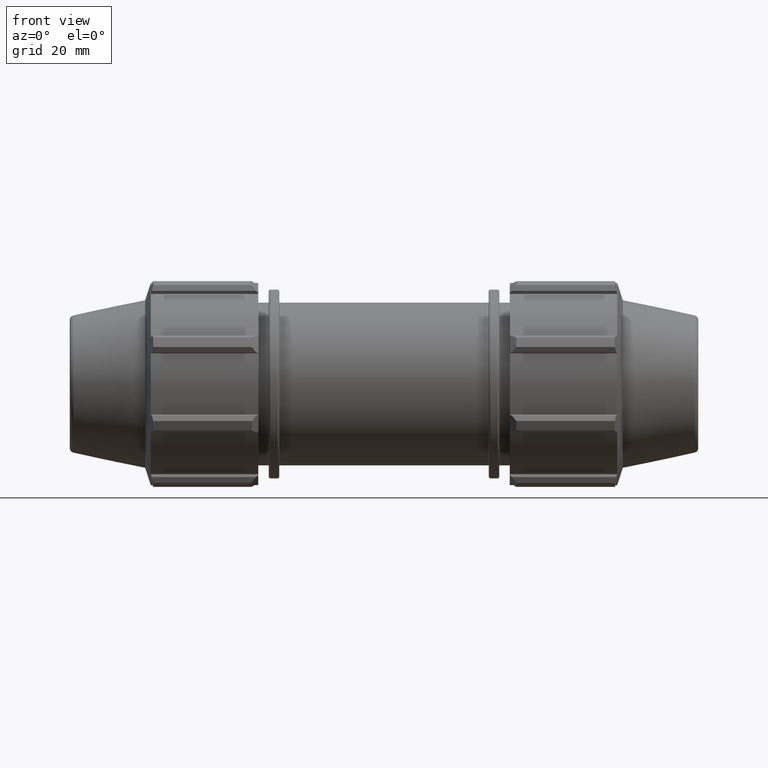
[diagram: clean part render]
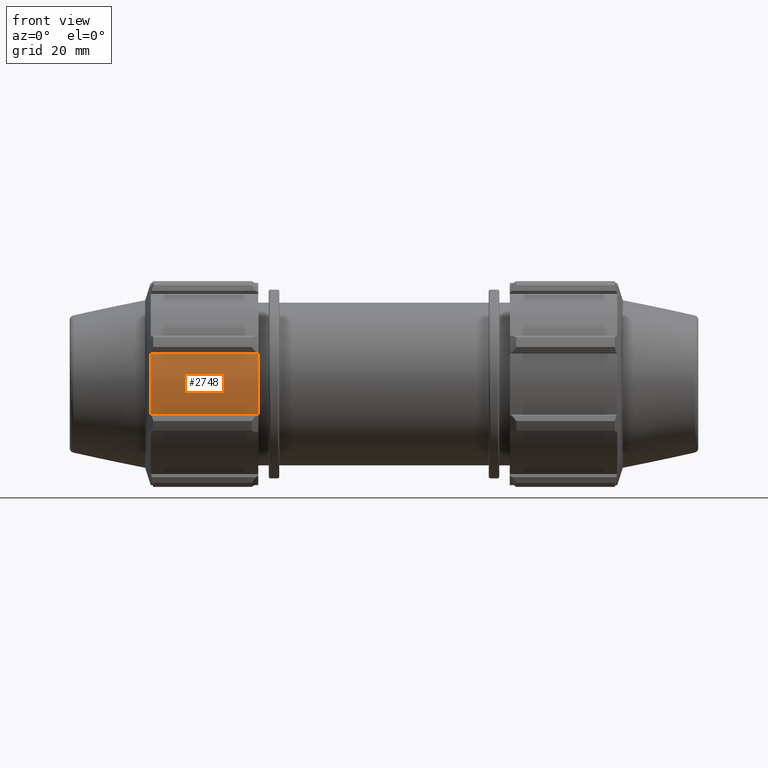
[diagram: same view with one face highlighted and labeled with its STEP entity id]
A machine part, front view. The second image highlights one B-rep face of the part: STEP entity #2748.
In plain terms, the highlighted cylindrical surface (partial cylindrical patch) has radius 22.32 mm, axis along (1, 0, -0).
Its self-contained STEP definition (entity closure, byte-faithful):
#110=LINE('',#4074,#302);
#174=LINE('',#4380,#366);
#302=VECTOR('',#3221,23.6052845743094);
#366=VECTOR('',#3451,23.6052845743094);
#682=FACE_OUTER_BOUND('',#854,.T.);
#854=EDGE_LOOP('',(#2056,#2057,#2058,#2059));
#981=CIRCLE('',#2861,22.32);
#1014=CIRCLE('',#2922,22.32);
#1108=VERTEX_POINT('',#3988);
#1109=VERTEX_POINT('',#3990);
#1143=VERTEX_POINT('',#4072);
#1203=VERTEX_POINT('',#4288);
#1374=EDGE_CURVE('',#1108,#1109,#981,.T.);
#1413=EDGE_CURVE('',#1108,#1143,#110,.T.);
#1497=EDGE_CURVE('',#1203,#1143,#1014,.T.);
#1537=EDGE_CURVE('',#1109,#1203,#174,.T.);
#2056=ORIENTED_EDGE('',*,*,#1497,.F.);
#2057=ORIENTED_EDGE('',*,*,#1537,.F.);
#2058=ORIENTED_EDGE('',*,*,#1374,.F.);
#2059=ORIENTED_EDGE('',*,*,#1413,.T.);
#2502=CYLINDRICAL_SURFACE('',#2963,22.32);
#2748=ADVANCED_FACE('',(#682),#2502,.T.);
#2861=AXIS2_PLACEMENT_3D('',#3991,#3162,#3163);
#2922=AXIS2_PLACEMENT_3D('',#4290,#3347,#3348);
#2963=AXIS2_PLACEMENT_3D('',#4381,#3452,#3453);
#3162=DIRECTION('center_axis',(1.,-4.01311517903141E-16,0.));
#3163=DIRECTION('ref_axis',(-3.88945856522847E-16,0.953716950748227,0.300705799504273));
#3221=DIRECTION('',(-1.,-4.07821058667044E-16,7.39557098644699E-32));
#3347=DIRECTION('center_axis',(-1.,-4.07821058667044E-16,7.39557098644699E-32));
#3348=DIRECTION('ref_axis',(-3.88945856522847E-16,0.953716950748227,0.300705799504273));
#3451=DIRECTION('',(-1.,-4.07821058667044E-16,7.39557098644699E-32));
#3452=DIRECTION('center_axis',(1.,4.07821058667044E-16,-7.39557098644699E-32));
#3453=DIRECTION('ref_axis',(-3.88945856522847E-16,0.953716950748227,0.300705799504273));
#3988=CARTESIAN_POINT('',(-27.6,-21.2869623407004,6.71175344493538));
#3990=CARTESIAN_POINT('',(-27.6,-21.2869623407004,-6.71175344493537));
#3991=CARTESIAN_POINT('Origin',(-27.6,2.03302085294721E-14,1.97215226305253E-30));
#4072=CARTESIAN_POINT('',(-51.2052845743094,-21.2869623407004,6.71175344493538));
#4074=CARTESIAN_POINT('',(-27.6,-21.2869623407004,6.71175344493538));
#4288=CARTESIAN_POINT('',(-51.2052845743094,-21.2869623407004,-6.71175344493537));
#4290=CARTESIAN_POINT('Origin',(-51.2052845743094,1.07034763842404E-14,
3.7178978402984E-30));
#4380=CARTESIAN_POINT('',(-27.6,-21.2869623407004,-6.71175344493537));
#4381=CARTESIAN_POINT('Origin',(-27.6,2.03302085294721E-14,1.97215226305253E-30));